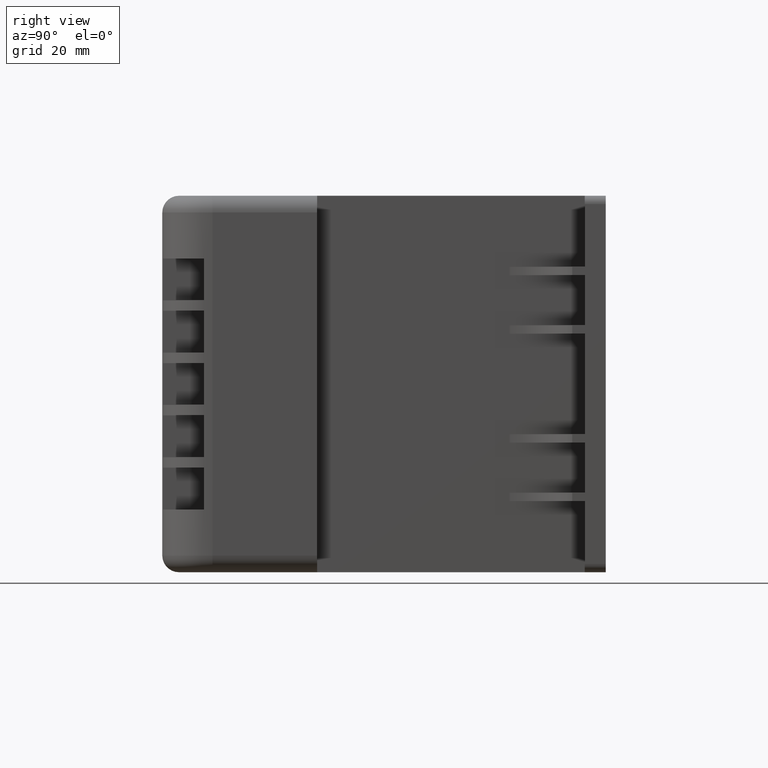
[diagram: clean part render]
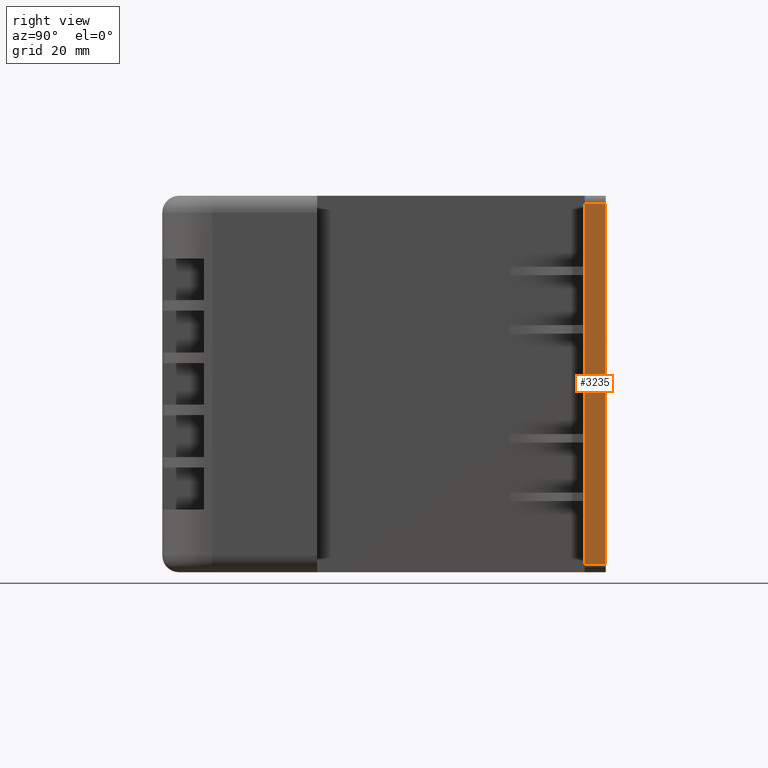
[diagram: same view with one face highlighted and labeled with its STEP entity id]
A machine part, right view. The second image highlights one B-rep face of the part: STEP entity #3235.
In plain terms, the highlighted planar face has unit normal (1, -0, -0).
Its self-contained STEP definition (entity closure, byte-faithful):
#366=FACE_OUTER_BOUND('',#584,.T.);
#584=EDGE_LOOP('',(#2520,#2521,#2522,#2523));
#862=LINE('',#5264,#1166);
#863=LINE('',#5267,#1167);
#864=LINE('',#5269,#1168);
#865=LINE('',#5270,#1169);
#1166=VECTOR('',#4378,10.);
#1167=VECTOR('',#4381,10.);
#1168=VECTOR('',#4382,10.);
#1169=VECTOR('',#4383,10.);
#1454=VERTEX_POINT('',#5260);
#1455=VERTEX_POINT('',#5262);
#1456=VERTEX_POINT('',#5266);
#1457=VERTEX_POINT('',#5268);
#1832=EDGE_CURVE('',#1454,#1455,#862,.T.);
#1833=EDGE_CURVE('',#1456,#1454,#863,.T.);
#1834=EDGE_CURVE('',#1457,#1455,#864,.T.);
#1835=EDGE_CURVE('',#1456,#1457,#865,.T.);
#2520=ORIENTED_EDGE('',*,*,#1833,.T.);
#2521=ORIENTED_EDGE('',*,*,#1832,.T.);
#2522=ORIENTED_EDGE('',*,*,#1834,.F.);
#2523=ORIENTED_EDGE('',*,*,#1835,.F.);
#2857=PLANE('',#3625);
#3235=ADVANCED_FACE('',(#366),#2857,.T.);
#3625=AXIS2_PLACEMENT_3D('',#5265,#4379,#4380);
#4378=DIRECTION('',(0.,1.,0.));
#4379=DIRECTION('center_axis',(-1.,0.,4.13106241720988E-16));
#4380=DIRECTION('ref_axis',(4.13106241720988E-16,0.,1.));
#4381=DIRECTION('',(4.13106241720988E-16,0.,1.));
#4382=DIRECTION('',(4.13106241720988E-16,0.,1.));
#4383=DIRECTION('',(0.,1.,0.));
#5260=CARTESIAN_POINT('',(-106.,0.,88.));
#5262=CARTESIAN_POINT('',(-106.,5.,88.));
#5264=CARTESIAN_POINT('',(-106.,0.,88.));
#5265=CARTESIAN_POINT('Origin',(-106.,0.,2.));
#5266=CARTESIAN_POINT('',(-106.,0.,2.));
#5267=CARTESIAN_POINT('',(-106.,0.,2.));
#5268=CARTESIAN_POINT('',(-106.,5.,2.));
#5269=CARTESIAN_POINT('',(-106.,5.,2.));
#5270=CARTESIAN_POINT('',(-106.,0.,2.));